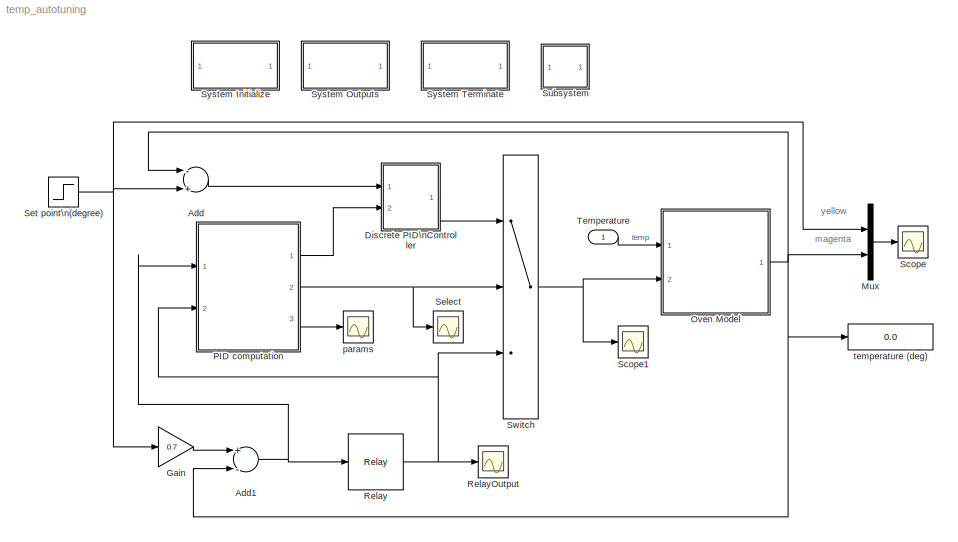
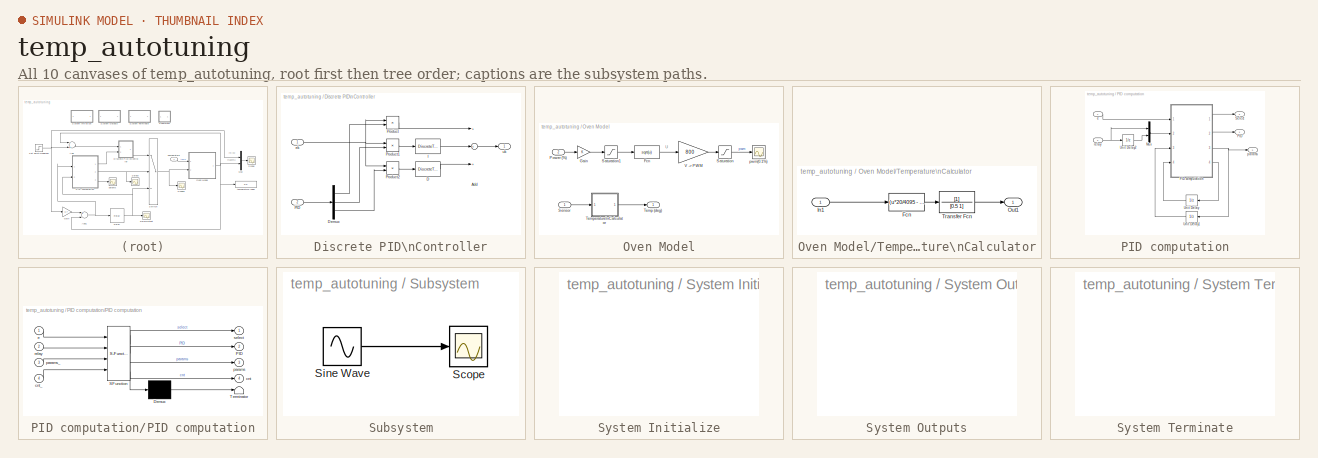
[diagram: thumbnail index - all 10 canvases of the model, root first then tree order]
MODEL temp_autotuning
KIND model
BLOCK [Sum] Add
  InputSameDT = off
  Inputs = -+
  OutDataType = fixdt(1, 16)
  OutDataTypeMode = Inherit via internal rule
  OutDataTypeStr = Inherit: Inherit via internal rule
  OutScaling = 2^-10
  Ports = [2, 1]
  SID = 2
  SaturateOnIntegerOverflow = off
BLOCK [Sum] Add1
  InputSameDT = off
  Inputs = +-
  OutDataType = fixdt(1, 16)
  OutDataTypeMode = Inherit via internal rule
  OutDataTypeStr = Inherit: Inherit via internal rule
  OutScaling = 2^-10
  Ports = [2, 1]
  SID = 3
  SaturateOnIntegerOverflow = off
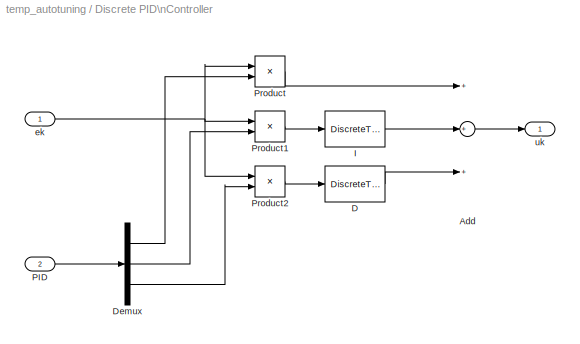
BLOCK [SubSystem] Discrete PID\nController
  FunctionWithSeparateData = off
  MaskHideContents = off
  MinAlgLoopOccurrences = off
  Opaque = off
  Ports = [2, 1]
  PropExecContextOutsideSubsystem = off
  RTWSystemCode = Auto
  RequestExecContextInheritance = off
  SID = 4
BLOCK [Sum] Discrete PID\nController/Add
  InputSameDT = off
  Inputs = +++
  OutDataType = sfix(16)
  OutDataTypeMode = Inherit via internal rule
  OutDataTypeStr = Inherit: Inherit via internal rule
  OutScaling = 2^-10
  Ports = [3, 1]
  SID = 7
  SaturateOnIntegerOverflow = off
BLOCK [DiscreteTransferFcn] Discrete PID\nController/D
  Denominator = [1 0]
  Numerator = [1 -1]
  Ports = [1, 1]
  SID = 8
BLOCK [Demux] Discrete PID\nController/Demux
  DisplayOption = bar
  Outputs = 3
  Ports = [1, 3]
  SID = 9
BLOCK [DiscreteTransferFcn] Discrete PID\nController/I
  Denominator = [1 -1]
  Numerator = [1 1]
  Ports = [1, 1]
  SID = 10
BLOCK [Inport] Discrete PID\nController/PID
  IconDisplay = Port number
  OutDataType = fixdt(1, 16)
  OutScaling = 2^0
  Port = 2
  SID = 6
BLOCK [Product] Discrete PID\nController/Product
  InputSameDT = off
  OutDataType = fixdt(1, 16)
  OutDataTypeMode = Inherit via internal rule
  OutDataTypeStr = Inherit: Inherit via internal rule
  OutScaling = 2^0
  Ports = [2, 1]
  SID = 11
  SaturateOnIntegerOverflow = off
BLOCK [Product] Discrete PID\nController/Product1
  InputSameDT = off
  OutDataType = fixdt(1, 16)
  OutDataTypeMode = Inherit via internal rule
  OutDataTypeStr = Inherit: Inherit via internal rule
  OutScaling = 2^0
  Ports = [2, 1]
  SID = 12
  SaturateOnIntegerOverflow = off
BLOCK [Product] Discrete PID\nController/Product2
  InputSameDT = off
  OutDataType = fixdt(1, 16)
  OutDataTypeMode = Inherit via internal rule
  OutDataTypeStr = Inherit: Inherit via internal rule
  OutScaling = 2^0
  Ports = [2, 1]
  SID = 13
  SaturateOnIntegerOverflow = off
BLOCK [Inport] Discrete PID\nController/ek
  IconDisplay = Port number
  OutDataType = sfix(16)
  OutScaling = 2^0
  SID = 5
BLOCK [Outport] Discrete PID\nController/uk
  IconDisplay = Port number
  OutDataType = sfix(16)
  OutScaling = 2^0
  SID = 14
BLOCK [Gain] Gain
  Gain = 0.7
  OutDataType = fixdt(1, 16)
  OutDataTypeMode = Inherit via internal rule
  OutDataTypeStr = Inherit: Inherit via internal rule
  OutScaling = 2^0
  ParamDataTypeStr = Inherit: Inherit via internal rule
  ParameterDataType = fixdt(1, 16)
  ParameterDataTypeMode = Inherit via internal rule
  ParameterScaling = 2^0
  SID = 15
  SaturateOnIntegerOverflow = off
BLOCK [Mux] Mux
  DisplayOption = bar
  Inputs = 2
  Ports = [2, 1]
  SID = 16
BLOCK [SubSystem] Oven Model
  FunctionWithSeparateData = off
  MaskHideContents = off
  MinAlgLoopOccurrences = off
  Opaque = off
  Ports = [2, 1]
  PropExecContextOutsideSubsystem = off
  RTWSystemCode = Auto
  RequestExecContextInheritance = off
  SID = 17
BLOCK [Fcn] Oven Model/Fcn
  Expr = sqrt(u)
  SID = 20
BLOCK [Gain] Oven Model/Gain
  OutDataType = sfix(16)
  OutDataTypeMode = Inherit via internal rule
  OutDataTypeStr = Inherit: Inherit via internal rule
  OutScaling = 2^0
  ParamDataTypeStr = Inherit: Inherit via internal rule
  ParameterDataType = sfix(16)
  ParameterDataTypeMode = Inherit via internal rule
  ParameterScaling = 2^0
  SID = 21
  SaturateOnIntegerOverflow = off
BLOCK [Inport] Oven Model/Power (%)
  IconDisplay = Port number
  OutDataType = sfix(16)
  OutScaling = 2^0
  Port = 2
  SID = 19
BLOCK [Saturate] Oven Model/Saturation
  LowerLimit = 0.5
  SID = 22
  UpperLimit = 800
BLOCK [Saturate] Oven Model/Saturation1
  LowerLimit = 0
  SID = 23
  UpperLimit = 1
BLOCK [Inport] Oven Model/Sensor
  IconDisplay = Port number
  OutDataType = sfix(16)
  OutScaling = 2^0
  SID = 18
BLOCK [Outport] Oven Model/Temp (deg)
  IconDisplay = Port number
  OutDataType = sfix(16)
  OutScaling = 2^0
  SID = 31
BLOCK [SubSystem] Oven Model/Temperature\nCalculator
  FunctionWithSeparateData = off
  MaskHideContents = off
  MinAlgLoopOccurrences = off
  Opaque = off
  Ports = [1, 1]
  PropExecContextOutsideSubsystem = off
  RTWSystemCode = Auto
  RequestExecContextInheritance = off
  SID = 24
BLOCK [Fcn] Oven Model/Temperature\nCalculator/Fcn
  Expr = (u*20/4095 - 4)*200/16
  SID = 26
BLOCK [Inport] Oven Model/Temperature\nCalculator/In1
  IconDisplay = Port number
  OutDataType = sfix(16)
  OutScaling = 2^0
  SID = 25
BLOCK [Outport] Oven Model/Temperature\nCalculator/Out1
  IconDisplay = Port number
  OutDataType = sfix(16)
  OutScaling = 2^0
  SID = 28
BLOCK [TransferFcn] Oven Model/Temperature\nCalculator/Transfer Fcn
  Denominator = [0.5 1]
  SID = 27
BLOCK [Gain] Oven Model/V -> PWM
  Gain = 800
  OutDataType = sfix(16)
  OutDataTypeMode = Inherit via internal rule
  OutDataTypeStr = Inherit: Inherit via internal rule
  OutScaling = 2^0
  ParameterDataType = sfix(16)
  ParameterScaling = 2^0
  SID = 29
  SaturateOnIntegerOverflow = off
BLOCK [Scope] Oven Model/pwm(0.1%)
  DataFormat = Array
  Floating = off
  LimitDataPoints = off
  NumInputPorts = 1
  Ports = [1]
  SID = 30
  SampleTime = 0
  SaveName = ScopeData2
  SaveToWorkspace = on
  YMax = 1000
  YMin = 0
BLOCK [SubSystem] PID computation
  FunctionWithSeparateData = off
  MaskHideContents = off
  MinAlgLoopOccurrences = off
  Opaque = off
  Ports = [2, 3]
  PropExecContextOutsideSubsystem = off
  RTWSystemCode = Auto
  RequestExecContextInheritance = off
  SID = 32
BLOCK [Mux] PID computation/Mux
  DisplayOption = bar
  Inputs = 2
  Ports = [2, 1]
  SID = 35
BLOCK [Outport] PID computation/PID
  IconDisplay = Port number
  OutDataType = fixdt(1, 16)
  OutScaling = 2^0
  PortDimensions = 3
  SID = 40
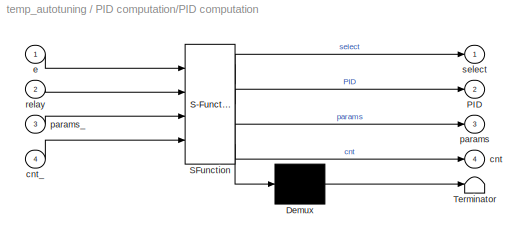
BLOCK [SubSystem] PID computation/PID computation
  FunctionWithSeparateData = off
  MaskDescription = Embedded MATLAB block
  MaskDisplay = disp('fcn');
  MaskHideContents = off
  MaskIconFrame = on
  MaskIconOpaque = off
  MaskIconRotate = none
  MaskIconUnits = autoscale
  MaskPortRotate = default
  MaskSelfModifiable = on
  MaskType = Stateflow
  MinAlgLoopOccurrences = off
  Opaque = off
  PermitHierarchicalResolution = ExplicitOnly
  Ports = [4, 4]
  PropExecContextOutsideSubsystem = off
  RTWSystemCode = Auto
  RequestExecContextInheritance = off
  SID = 36
BLOCK [Demux] PID computation/PID computation/ Demux 
  Outputs = 1
  Ports = [1, 1]
  SID = 13
BLOCK [S-Function] PID computation/PID computation/ SFunction 
  EnableBusSupport = off
  FunctionName = sf_sfun
  PortCounts = [4 5]
  Ports = [4, 5]
  SID = 12
  Tag = Stateflow S-Function temp_autotuning 2
BLOCK [Terminator] PID computation/PID computation/ Terminator 
  SID = 15
BLOCK [Outport] PID computation/PID computation/PID
  IconDisplay = Port number
  Port = 2
  SID = 9
BLOCK [Outport] PID computation/PID computation/cnt
  IconDisplay = Port number
  Port = 4
  SID = 11
BLOCK [Inport] PID computation/PID computation/cnt_
  IconDisplay = Port number
  Port = 4
  SID = 4
BLOCK [Inport] PID computation/PID computation/e
  IconDisplay = Port number
  SID = 1
BLOCK [Outport] PID computation/PID computation/params
  IconDisplay = Port number
  Port = 3
  SID = 10
BLOCK [Inport] PID computation/PID computation/params_
  IconDisplay = Port number
  Port = 3
  SID = 3
BLOCK [Inport] PID computation/PID computation/relay
  IconDisplay = Port number
  OutDataType = sfix(16)
  OutScaling = 2^0
  Port = 2
  SID = 2
BLOCK [Outport] PID computation/PID computation/select
  IconDisplay = Port number
  OutDataType = sfix(16)
  OutScaling = 2^0
  SID = 8
BLOCK [Outport] PID computation/Select
  IconDisplay = Port number
  OutDataType = fixdt(1, 16)
  OutScaling = 2^0
  Port = 2
  PortDimensions = 1
  SID = 41
BLOCK [UnitDelay] PID computation/Unit Delay
  SID = 37
  SampleTime = -1
BLOCK [UnitDelay] PID computation/Unit Delay1
  SID = 38
  SampleTime = -1
  X0 = [0; 0; 0; 0; 0]
BLOCK [UnitDelay] PID computation/Unit Delay2
  SID = 39
  SampleTime = -1
  X0 = 1
BLOCK [Inport] PID computation/e
  IconDisplay = Port number
  OutDataType = fixdt(1, 16)
  OutScaling = 2^0
  PortDimensions = 1
  SID = 33
BLOCK [Outport] PID computation/params
  IconDisplay = Port number
  OutDataType = sfix(16)
  OutScaling = 2^0
  Port = 3
  SID = 42
BLOCK [Inport] PID computation/relay
  IconDisplay = Port number
  OutDataType = fixdt(1, 16)
  OutScaling = 2^0
  Port = 2
  PortDimensions = 1
  SID = 34
BLOCK [Relay] Relay
  OffSwitchValue = -0.1
  OnOutputValue = 0.5
  OnSwitchValue = 0.1
  OutDataType = sfix(16)
  OutScaling = 2^0
  SID = 43
BLOCK [Scope] RelayOutput
  DataFormat = StructureWithTime
  Floating = off
  LimitDataPoints = off
  NumInputPorts = 1
  Ports = [1]
  SID = 44
  SampleTime = 0
  SaveName = RelayOutput
  SaveToWorkspace = on
BLOCK [Scope] Scope
  DataFormat = StructureWithTime
  Floating = off
  LimitDataPoints = off
  NumInputPorts = 1
  Ports = [1]
  SID = 45
  SampleTime = 0
  SaveToWorkspace = on
  YMax = 72.2
  YMin = 70
BLOCK [Scope] Scope1
  DataFormat = StructureWithTime
  Floating = off
  LimitDataPoints = off
  NumInputPorts = 1
  Ports = [1]
  SID = 46
  SampleTime = 0
  SaveName = ScopeData1
  SaveToWorkspace = on
  YMax = 0.525
  YMin = 0.475
BLOCK [Scope] Select
  DataFormat = StructureWithTime
  Floating = off
  LimitDataPoints = off
  NumInputPorts = 1
  Ports = [1]
  SID = 47
  SampleTime = 0
  SaveName = Select
  SaveToWorkspace = on
  YMax = 0.525
  YMin = 0.475
BLOCK [Step] Set point\n(degree)
  After = 100
  SID = 48
  SampleTime = 0
  Time = 0
BLOCK [SubSystem] Subsystem
  FunctionWithSeparateData = off
  MaskHideContents = off
  MinAlgLoopOccurrences = off
  Opaque = off
  Ports = []
  PropExecContextOutsideSubsystem = off
  RTWSystemCode = Auto
  RequestExecContextInheritance = off
  SID = 55
  TreatAsAtomicUnit = on
BLOCK [Scope] Subsystem/Scope
  DataFormat = StructureWithTime
  Floating = off
  NumInputPorts = 1
  Ports = [1]
  SID = 56
  SampleTime = 0
  SaveName = ScopeData1
BLOCK [Sin] Subsystem/Sine Wave
  Amplitude = 1
  Bias = 0
  Frequency = 1
  Offset = 0
  Phase = 0
  Ports = [0, 1]
  SID = 57
  SampleTime = 0
  Samples = 10
BLOCK [Switch] Switch
  InputSameDT = off
  SID = 49
  SaturateOnIntegerOverflow = off
  Threshold = 0.5
BLOCK [SubSystem] System Initialize
  CopyFcn = cccopyfcn(gcb)
  FunctionWithSeparateData = off
  MaskDescription = Add code to a systems Initialize function
  MaskDisplay = disp('System\\nInitialize');
  MaskEnableString = off
  MaskHelp = This block contains text fields to insert custom user code sections at the declaration, execution and exit sections of the systems initialize function.  By placing this block inside a subsytem, the custom user code will appear in that subsystems function.
  MaskHideContents = off
  MaskIconFrame = on
  MaskIconOpaque = on
  MaskIconRotate = none
  MaskIconUnits = autoscale
  MaskPortRotate = default
  MaskPromptString = Mask Parameter 1:
  MaskStyleString = edit
  MaskToolTipString = on
  MaskTunableValueString = on
  MaskType = System Initialize
  MaskValueString = 0
  MaskVariables = ShowInLibBrowser=@1;
  MaskVisibilityString = off
  MinAlgLoopOccurrences = off
  Opaque = off
  OpenFcn = ccopenfcn('System Initialize Function')
  Ports = []
  PropExecContextOutsideSubsystem = off
  RTWSystemCode = Auto
  RequestExecContextInheritance = off
  SID = 50
BLOCK [SubSystem] System Outputs
  CopyFcn = cccopyfcn(gcb)
  FunctionWithSeparateData = off
  MaskDescription = Add code to a systems Outputs function
  MaskDisplay = disp('System\\nOutputs');
  MaskEnableString = off
  MaskHelp = This block contains text fields to insert custom user code sections at the declaration, execution and exit sections of the systems outputs function.  By placing this block inside a subsytem, the custom user code will appear in that subsystems function.
  MaskHideContents = off
  MaskIconFrame = on
  MaskIconOpaque = on
  MaskIconRotate = none
  MaskIconUnits = autoscale
  MaskPortRotate = default
  MaskPromptString = Mask Parameter 1:
  MaskStyleString = edit
  MaskToolTipString = on
  MaskTunableValueString = on
  MaskType = System Outputs
  MaskValueString = 0
  MaskVariables = ShowInLibBrowser=@1;
  MaskVisibilityString = off
  MinAlgLoopOccurrences = off
  Opaque = off
  OpenFcn = ccopenfcn('System Outputs Function')
  Ports = []
  PropExecContextOutsideSubsystem = off
  RTWSystemCode = Auto
  RequestExecContextInheritance = off
  SID = 51
BLOCK [SubSystem] System Terminate
  CopyFcn = cccopyfcn(gcb)
  FunctionWithSeparateData = off
  MaskDescription = Add code to a systems Terminate function
  MaskDisplay = disp('System\\nTerminate');
  MaskEnableString = off
  MaskHelp = This block contains text fields to insert custom user code sections at the declaration, execution and exit sections of the systems terminate function.  By placing this block inside a subsytem, the custom user code will appear in that subsystems function.
  MaskHideContents = off
  MaskIconFrame = on
  MaskIconOpaque = on
  MaskIconRotate = none
  MaskIconUnits = autoscale
  MaskPortRotate = default
  MaskPromptString = Mask Parameter 1:
  MaskStyleString = edit
  MaskToolTipString = on
  MaskTunableValueString = on
  MaskType = System Terminate
  MaskValueString = 0
  MaskVariables = ShowInLibBrowser=@1;
  MaskVisibilityString = off
  MinAlgLoopOccurrences = off
  Opaque = off
  OpenFcn = ccopenfcn('System Terminate Function')
  Ports = []
  PropExecContextOutsideSubsystem = off
  RTWSystemCode = Auto
  RequestExecContextInheritance = off
  SID = 52
BLOCK [Inport] Temperature
  IconDisplay = Port number
  OutDataType = sfix(16)
  OutScaling = 2^0
  SID = 1
BLOCK [Scope] params
  DataFormat = StructureWithTime
  Floating = off
  LimitDataPoints = off
  NumInputPorts = 1
  Ports = [1]
  SID = 53
  SampleTime = 0
  SaveName = params
  SaveToWorkspace = on
BLOCK [Display] temperature (deg)
  Decimation = 1
  Lockdown = off
  Ports = [1]
  SID = 54
ANNOTATION (root): magenta
ANNOTATION (root): yellow
ANNOTATION Oven Model: U
NET Add1:1 -> PID computation:1, Relay:1
LINE Add:1 -> Discrete PID\nController:1
LINE Discrete PID\nController/Add:1 -> Discrete PID\nController/uk:1
LINE Discrete PID\nController/D:1 -> Discrete PID\nController/Add:3
LINE Discrete PID\nController/Demux:1 -> Discrete PID\nController/Product:2
LINE Discrete PID\nController/Demux:2 -> Discrete PID\nController/Product1:2
LINE Discrete PID\nController/Demux:3 -> Discrete PID\nController/Product2:2
LINE Discrete PID\nController/I:1 -> Discrete PID\nController/Add:2
LINE Discrete PID\nController/PID:1 -> Discrete PID\nController/Demux:1
LINE Discrete PID\nController/Product1:1 -> Discrete PID\nController/I:1
LINE Discrete PID\nController/Product2:1 -> Discrete PID\nController/D:1
LINE Discrete PID\nController/Product:1 -> Discrete PID\nController/Add:1
NET Discrete PID\nController/ek:1 -> Discrete PID\nController/Product1:1, Discrete PID\nController/Product2:1, Discrete PID\nController/Product:1
LINE Discrete PID\nController:1 -> Switch:1
LINE Gain:1 -> Add1:1
LINE Mux:1 -> Scope:1
LINE Oven Model/Fcn:1 -> Oven Model/V -> PWM:1
LINE Oven Model/Gain:1 -> Oven Model/Saturation1:1
LINE Oven Model/Power (%):1 -> Oven Model/Gain:1
LINE Oven Model/Saturation1:1 -> Oven Model/Fcn:1
LINE Oven Model/Saturation:1 -> Oven Model/pwm(0.1%):1
LINE Oven Model/Sensor:1 -> Oven Model/Temperature\nCalculator:1
LINE Oven Model/Temperature\nCalculator/Fcn:1 -> Oven Model/Temperature\nCalculator/Transfer Fcn:1
LINE Oven Model/Temperature\nCalculator/In1:1 -> Oven Model/Temperature\nCalculator/Fcn:1
LINE Oven Model/Temperature\nCalculator/Transfer Fcn:1 -> Oven Model/Temperature\nCalculator/Out1:1
LINE Oven Model/Temperature\nCalculator:1 -> Oven Model/Temp (deg):1
LINE Oven Model/V -> PWM:1 -> Oven Model/Saturation:1
NET Oven Model:1 -> Add1:2, Add:1, Mux:2, temperature (deg):1
LINE PID computation/Mux:1 -> PID computation/PID computation:2
LINE PID computation/PID computation/ Demux :1 -> PID computation/PID computation/ Terminator :1
LINE PID computation/PID computation/ SFunction :1 -> PID computation/PID computation/ Demux :1
LINE PID computation/PID computation/ SFunction :2 -> PID computation/PID computation/select:1
LINE PID computation/PID computation/ SFunction :3 -> PID computation/PID computation/PID:1
LINE PID computation/PID computation/ SFunction :4 -> PID computation/PID computation/params:1
LINE PID computation/PID computation/ SFunction :5 -> PID computation/PID computation/cnt:1
LINE PID computation/PID computation/cnt_:1 -> PID computation/PID computation/ SFunction :4
LINE PID computation/PID computation/e:1 -> PID computation/PID computation/ SFunction :1
LINE PID computation/PID computation/params_:1 -> PID computation/PID computation/ SFunction :3
LINE PID computation/PID computation/relay:1 -> PID computation/PID computation/ SFunction :2
LINE PID computation/PID computation:1 -> PID computation/Select:1
LINE PID computation/PID computation:2 -> PID computation/PID:1
NET PID computation/PID computation:3 -> PID computation/Unit Delay1:1, PID computation/params:1
LINE PID computation/PID computation:4 -> PID computation/Unit Delay:1
LINE PID computation/Unit Delay1:1 -> PID computation/PID computation:3
LINE PID computation/Unit Delay2:1 -> PID computation/Mux:2
LINE PID computation/Unit Delay:1 -> PID computation/PID computation:4
LINE PID computation/e:1 -> PID computation/PID computation:1
NET PID computation/relay:1 -> PID computation/Mux:1, PID computation/Unit Delay2:1
LINE PID computation:1 -> Discrete PID\nController:2
NET PID computation:2 -> Select:1, Switch:2
LINE PID computation:3 -> params:1
NET Relay:1 -> PID computation:2, RelayOutput:1, Switch:3
NET Set point\n(degree):1 -> Add:2, Gain:1, Mux:1
LINE Subsystem/Sine Wave:1 -> Subsystem/Scope:1
NET Switch:1 -> Oven Model:2, Scope1:1
LINE Temperature:1 -> Oven Model:1
note: NET lines group one-source signal fan-out (src -> all destinations, sorted); 1:1 wires keep LINE
CHART PID computation/PID computation states=1 transitions=1
  STATE_LABEL 'eML_blk_kernel()'
